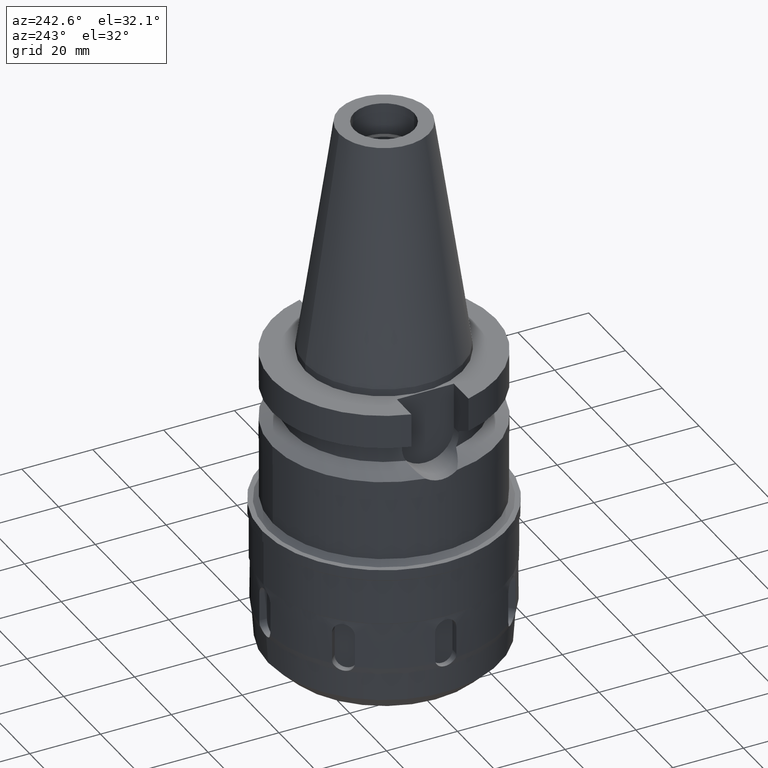
[diagram: clean part render]
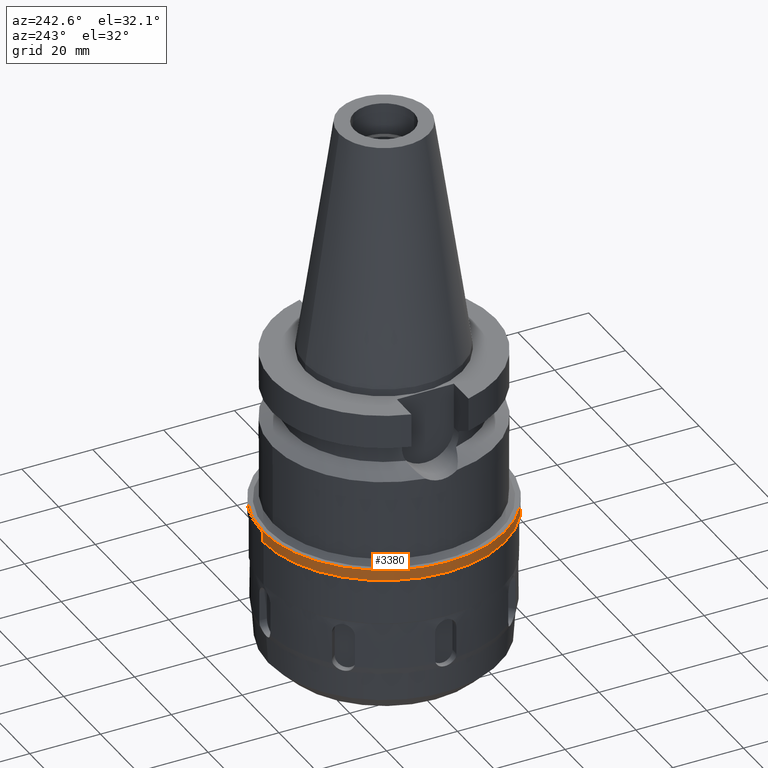
[diagram: same view with one face highlighted and labeled with its STEP entity id]
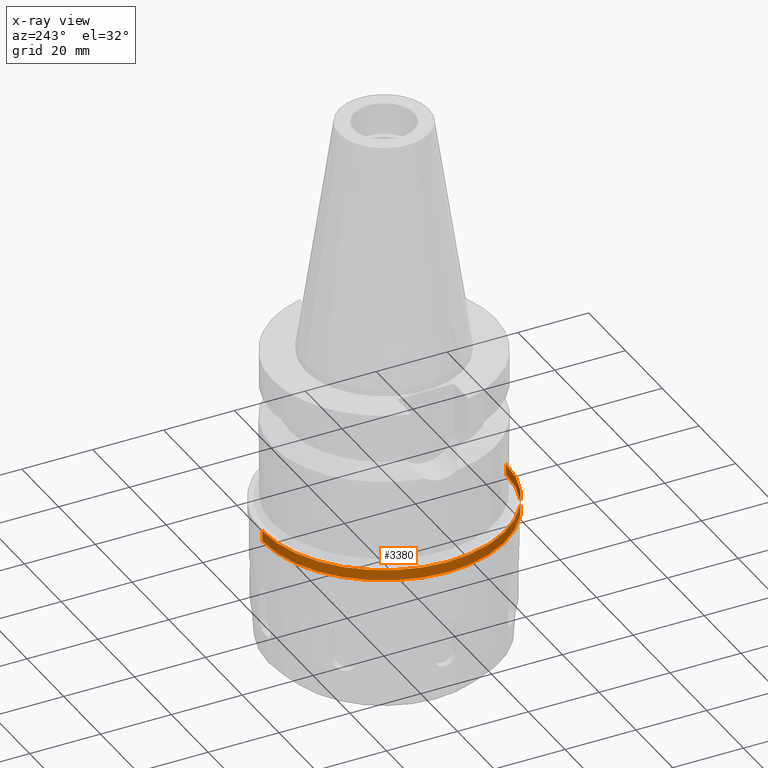
[diagram: x-ray of the same camera — body ghosted, the highlighted face saturated]
A machine part, auxiliary view. The second image highlights one B-rep face of the part: STEP entity #3380.
The next image is the same camera in x-ray: the body ghosted, the highlighted face saturated — about 1% of this face is hidden behind the body in this view.
In plain terms, the highlighted cylindrical surface (partial cylindrical patch) has radius 34.35 mm, axis along (0, 0, -1).
Its self-contained STEP definition (entity closure, byte-faithful):
#706=CARTESIAN_POINT('',(0.E0,2.120720862083E-14,-4.59E1));
#707=DIRECTION('',(0.E0,0.E0,-1.E0));
#708=DIRECTION('',(0.E0,-1.E0,0.E0));
#709=AXIS2_PLACEMENT_3D('',#706,#707,#708);
#738=DIRECTION('',(0.E0,0.E0,-1.E0));
#739=VECTOR('',#738,3.E0);
#740=CARTESIAN_POINT('',(0.E0,-3.435E1,-4.59E1));
#741=LINE('',#740,#739);
#745=DIRECTION('',(0.E0,0.E0,-1.E0));
#746=VECTOR('',#745,3.E0);
#747=CARTESIAN_POINT('',(0.E0,3.435E1,-4.59E1));
#748=LINE('',#747,#746);
#775=CARTESIAN_POINT('',(0.E0,0.E0,-4.89E1));
#776=DIRECTION('',(0.E0,0.E0,1.E0));
#777=DIRECTION('',(0.E0,1.E0,0.E0));
#778=AXIS2_PLACEMENT_3D('',#775,#776,#777);
#2680=CARTESIAN_POINT('',(0.E0,3.435E1,-4.89E1));
#2681=VERTEX_POINT('',#2680);
#2682=CARTESIAN_POINT('',(0.E0,-3.435E1,-4.89E1));
#2683=VERTEX_POINT('',#2682);
#2684=CARTESIAN_POINT('',(0.E0,3.435E1,-4.59E1));
#2685=VERTEX_POINT('',#2684);
#2686=CARTESIAN_POINT('',(0.E0,-3.435E1,-4.59E1));
#2687=VERTEX_POINT('',#2686);
#3366=CARTESIAN_POINT('',(0.E0,2.120720862083E-14,7.317E1));
#3367=DIRECTION('',(0.E0,0.E0,-1.E0));
#3368=DIRECTION('',(0.E0,-1.E0,0.E0));
#3369=AXIS2_PLACEMENT_3D('',#3366,#3367,#3368);
#3370=CYLINDRICAL_SURFACE('',#3369,3.435E1);
#3372=ORIENTED_EDGE('',*,*,#3371,.F.);
#3373=ORIENTED_EDGE('',*,*,#3355,.F.);
#3375=ORIENTED_EDGE('',*,*,#3374,.T.);
#3377=ORIENTED_EDGE('',*,*,#3376,.F.);
#3378=EDGE_LOOP('',(#3372,#3373,#3375,#3377));
#3379=FACE_OUTER_BOUND('',#3378,.F.);
#710=CIRCLE('',#709,3.435E1);
#779=CIRCLE('',#778,3.435E1);
#3355=EDGE_CURVE('',#2687,#2685,#710,.T.);
#3371=EDGE_CURVE('',#2685,#2681,#748,.T.);
#3374=EDGE_CURVE('',#2687,#2683,#741,.T.);
#3376=EDGE_CURVE('',#2681,#2683,#779,.T.);
#3380=ADVANCED_FACE('',(#3379),#3370,.T.);